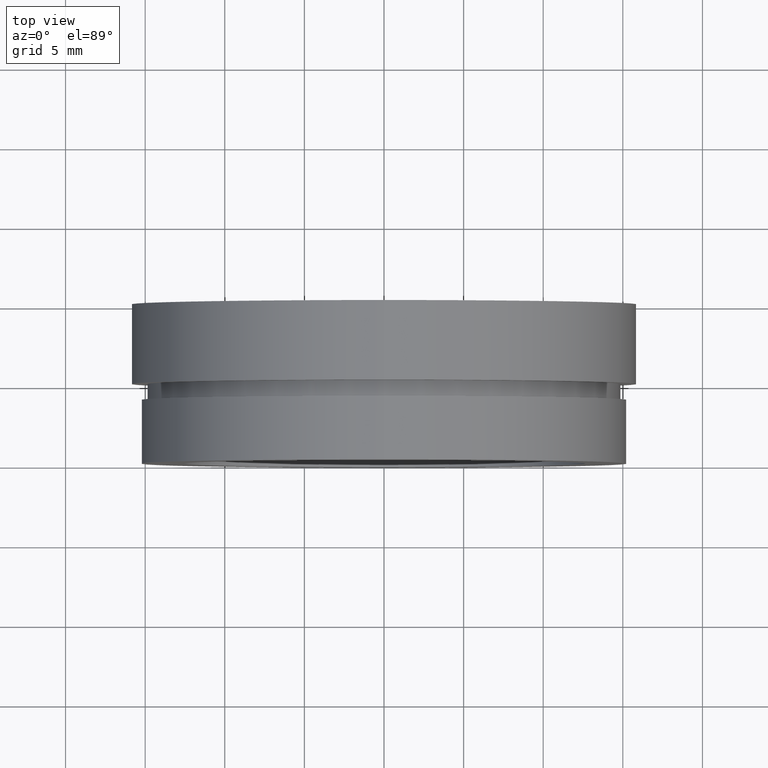
[diagram: clean part render]
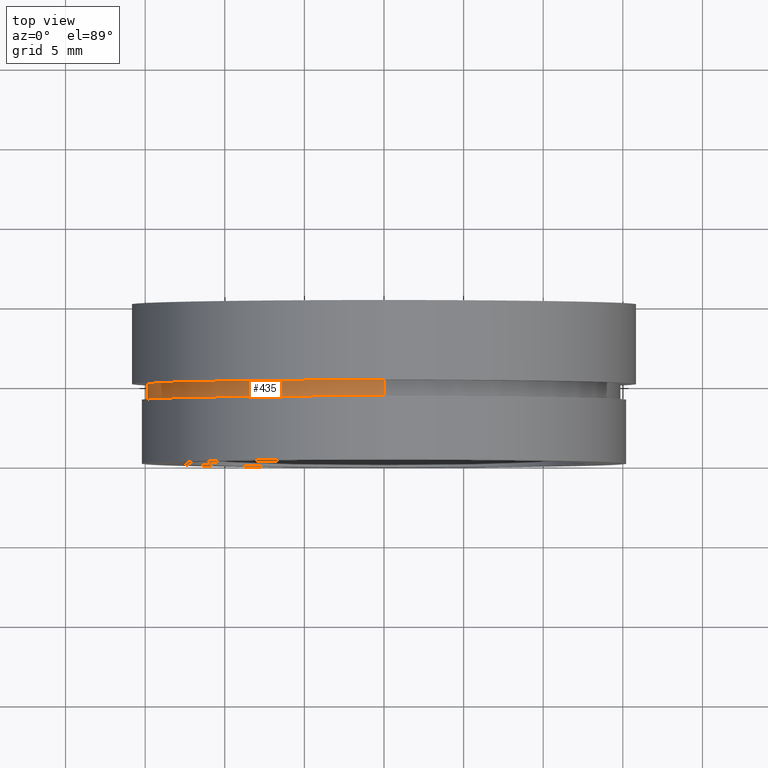
[diagram: same view with one face highlighted and labeled with its STEP entity id]
A machine part, top view. The second image highlights one B-rep face of the part: STEP entity #435.
In plain terms, the highlighted cylindrical surface (partial cylindrical patch) has radius 14.85 mm, axis along (-0, 1, -0).
Its self-contained STEP definition (entity closure, byte-faithful):
#1 = ORIENTED_EDGE ( 'NONE', *, *, #354, .F. ) ;
#14 = CARTESIAN_POINT ( 'NONE',  ( 0.0000000000000000000, 5.000000000000000900, 0.0000000000000000000 ) ) ;
#77 = VERTEX_POINT ( 'NONE', #536 ) ;
#79 = AXIS2_PLACEMENT_3D ( 'NONE', #14, #394, #178 ) ;
#89 = CARTESIAN_POINT ( 'NONE',  ( 1.818600496733820300E-015, 4.000000000000000000, -14.85000000000000500 ) ) ;
#95 = EDGE_CURVE ( 'NONE', #418, #263, #127, .T. ) ;
#113 = DIRECTION ( 'NONE',  ( -0.0000000000000000000, 1.000000000000000000, -0.0000000000000000000 ) ) ;
#116 = DIRECTION ( 'NONE',  ( 0.0000000000000000000, 0.0000000000000000000, 1.000000000000000000 ) ) ;
#123 = AXIS2_PLACEMENT_3D ( 'NONE', #166, #495, #410 ) ;
#127 = CIRCLE ( 'NONE', #79, 14.85000000000000100 ) ;
#155 = ORIENTED_EDGE ( 'NONE', *, *, #476, .T. ) ;
#166 = CARTESIAN_POINT ( 'NONE',  ( 0.0000000000000000000, 4.000000000000000000, 0.0000000000000000000 ) ) ;
#178 = DIRECTION ( 'NONE',  ( 0.0000000000000000000, 0.0000000000000000000, 1.000000000000000000 ) ) ;
#183 = CARTESIAN_POINT ( 'NONE',  ( 1.818600496733819900E-015, 13.74468085106383300, -14.85000000000000100 ) ) ;
#205 = ORIENTED_EDGE ( 'NONE', *, *, #95, .F. ) ;
#213 = LINE ( 'NONE', #183, #570 ) ;
#230 = FACE_OUTER_BOUND ( 'NONE', #378, .T. ) ;
#241 = CARTESIAN_POINT ( 'NONE',  ( 1.818600496733819900E-015, 5.000000000000000900, -14.85000000000000100 ) ) ;
#255 = VECTOR ( 'NONE', #474, 1000.000000000000000 ) ;
#263 = VERTEX_POINT ( 'NONE', #399 ) ;
#288 = AXIS2_PLACEMENT_3D ( 'NONE', #616, #463, #116 ) ;
#320 = CIRCLE ( 'NONE', #123, 14.85000000000000300 ) ;
#354 = EDGE_CURVE ( 'NONE', #362, #418, #213, .T. ) ;
#360 = ORIENTED_EDGE ( 'NONE', *, *, #404, .T. ) ;
#362 = VERTEX_POINT ( 'NONE', #89 ) ;
#378 = EDGE_LOOP ( 'NONE', ( #1, #360, #155, #205 ) ) ;
#394 = DIRECTION ( 'NONE',  ( -0.0000000000000000000, 1.000000000000000000, -0.0000000000000000000 ) ) ;
#399 = CARTESIAN_POINT ( 'NONE',  ( 0.0000000000000000000, 5.000000000000000900, 14.85000000000000100 ) ) ;
#404 = EDGE_CURVE ( 'NONE', #362, #77, #320, .T. ) ;
#410 = DIRECTION ( 'NONE',  ( 0.0000000000000000000, 0.0000000000000000000, 1.000000000000000000 ) ) ;
#418 = VERTEX_POINT ( 'NONE', #241 ) ;
#435 = ADVANCED_FACE ( 'NONE', ( #230 ), #581, .T. ) ;
#460 = CARTESIAN_POINT ( 'NONE',  ( 0.0000000000000000000, 13.74468085106383300, 14.85000000000000100 ) ) ;
#463 = DIRECTION ( 'NONE',  ( -0.0000000000000000000, 1.000000000000000000, -0.0000000000000000000 ) ) ;
#474 = DIRECTION ( 'NONE',  ( -0.0000000000000000000, 1.000000000000000000, -0.0000000000000000000 ) ) ;
#476 = EDGE_CURVE ( 'NONE', #77, #263, #510, .T. ) ;
#495 = DIRECTION ( 'NONE',  ( -0.0000000000000000000, 1.000000000000000000, -0.0000000000000000000 ) ) ;
#510 = LINE ( 'NONE', #460, #255 ) ;
#536 = CARTESIAN_POINT ( 'NONE',  ( 0.0000000000000000000, 4.000000000000000000, 14.85000000000000300 ) ) ;
#570 = VECTOR ( 'NONE', #113, 1000.000000000000000 ) ;
#581 = CYLINDRICAL_SURFACE ( 'NONE', #288, 14.85000000000000100 ) ;
#616 = CARTESIAN_POINT ( 'NONE',  ( 0.0000000000000000000, 13.74468085106383300, 0.0000000000000000000 ) ) ;